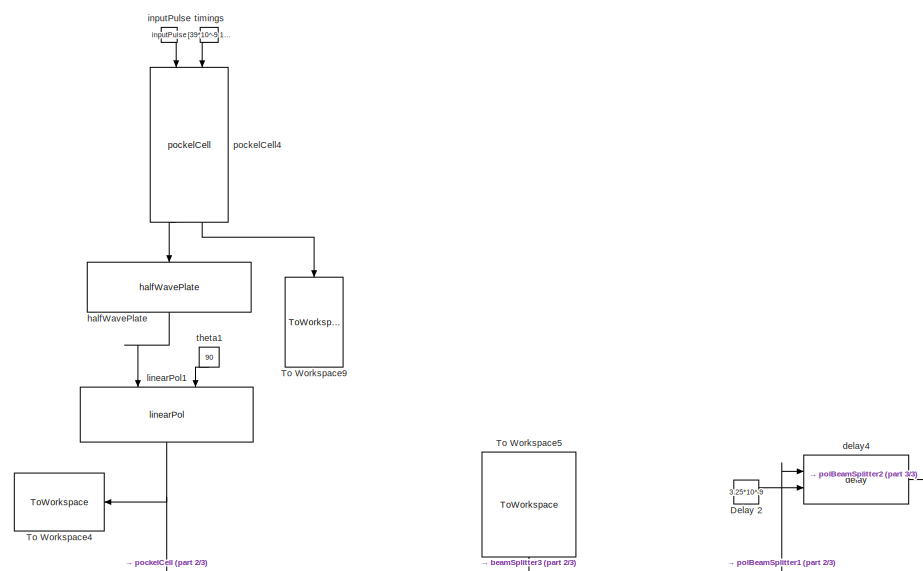
[diagram: root canvas - part 1/3, top center region]
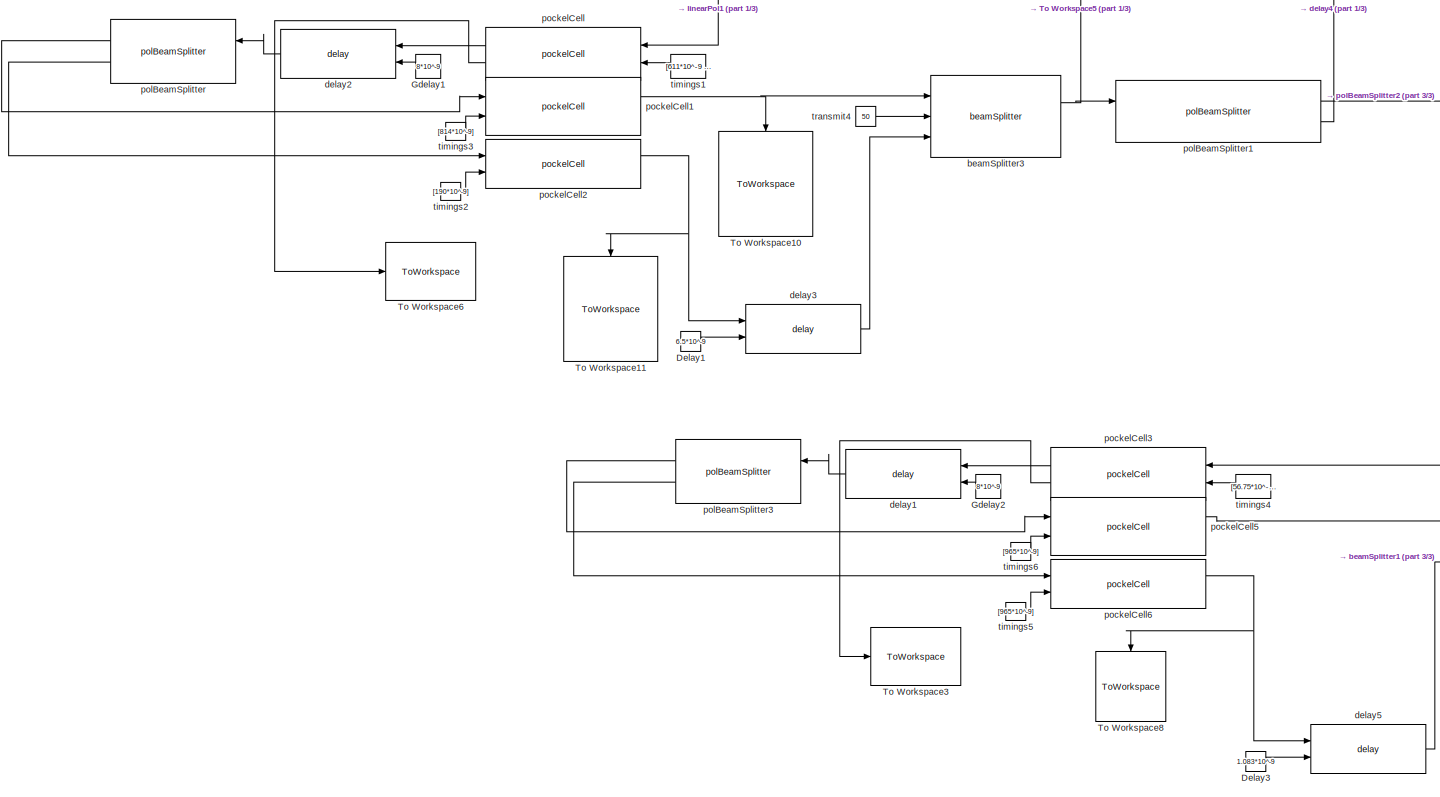
[diagram: root canvas - part 2/3, bottom left region]
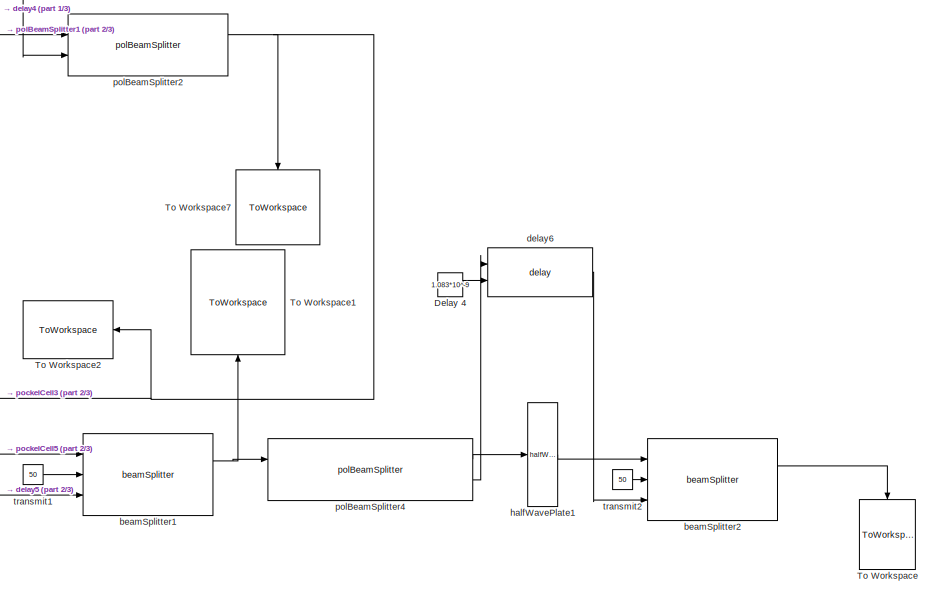
[diagram: root canvas - part 3/3, bottom right region]
MODEL slx_25d8e45b41b6
KIND model
BLOCK [Constant] Delay 2
  Value = 3.25*10^-9
BLOCK [Constant] Delay 4
  Value = 1.083*10^-9
BLOCK [Constant] Delay1
  Value = 6.5*10^-9
BLOCK [Constant] Delay3
  Value = 1.083*10^-9
BLOCK [Constant] Gdelay1
  Value = 8*10^-9
BLOCK [Constant] Gdelay2
  Value = 8*10^-9
BLOCK [ToWorkspace] To Workspace
  MaxDataPoints = inf
  Ports = [1]
  SampleTime = -1
  VariableName = outputPulse
BLOCK [ToWorkspace] To Workspace1
  MaxDataPoints = inf
  Ports = [1]
  SampleTime = -1
  VariableName = CombinedPCOut2
BLOCK [ToWorkspace] To Workspace10
  MaxDataPoints = inf
  Ports = [1]
  SampleTime = -1
  VariableName = horizPCOut
BLOCK [ToWorkspace] To Workspace11
  MaxDataPoints = inf
  Ports = [1]
  SampleTime = -1
  VariableName = vertPCOut
BLOCK [ToWorkspace] To Workspace2
  MaxDataPoints = inf
  Ports = [1]
  SampleTime = -1
  VariableName = PockelCellInput2
BLOCK [ToWorkspace] To Workspace3
  MaxDataPoints = inf
  Ports = [1]
  SampleTime = -1
  VariableName = PockelCellTimings2
BLOCK [ToWorkspace] To Workspace4
  MaxDataPoints = inf
  Ports = [1]
  SampleTime = -1
  VariableName = InitialEOMOut
BLOCK [ToWorkspace] To Workspace5
  MaxDataPoints = inf
  Ports = [1]
  SampleTime = -1
  VariableName = CombinedPCOut
BLOCK [ToWorkspace] To Workspace6
  MaxDataPoints = inf
  Ports = [1]
  SampleTime = -1
  VariableName = PockelCellTimings
BLOCK [ToWorkspace] To Workspace7
  MaxDataPoints = inf
  Ports = [1]
  SampleTime = -1
  VariableName = PBSDelayOut
BLOCK [ToWorkspace] To Workspace8
  MaxDataPoints = inf
  Ports = [1]
  SampleTime = -1
  VariableName = vertPCOut2
BLOCK [ToWorkspace] To Workspace9
  MaxDataPoints = inf
  Ports = [1]
  SampleTime = -1
  VariableName = EOMTimings
BLOCK [Reference] beamSplitter1  REF=opticalComponentLibrary/beamSplitter
  Ports = [3, 2]
  SourceBlock = opticalComponentLibrary/beamSplitter
  SourceType = SubSystem
BLOCK [Reference] beamSplitter2  REF=opticalComponentLibrary/beamSplitter
  Ports = [3, 2]
  SourceBlock = opticalComponentLibrary/beamSplitter
  SourceType = SubSystem
BLOCK [Reference] beamSplitter3  REF=opticalComponentLibrary/beamSplitter
  Ports = [3, 2]
  SourceBlock = opticalComponentLibrary/beamSplitter
  SourceType = SubSystem
BLOCK [Reference] delay1  REF=opticalComponentLibrary/delay
  Ports = [2, 1]
  SourceBlock = opticalComponentLibrary/delay
  SourceType = SubSystem
BLOCK [Reference] delay2  REF=opticalComponentLibrary/delay
  Ports = [2, 1]
  SourceBlock = opticalComponentLibrary/delay
  SourceType = SubSystem
BLOCK [Reference] delay3  REF=opticalComponentLibrary/delay
  Ports = [2, 1]
  SourceBlock = opticalComponentLibrary/delay
  SourceType = SubSystem
BLOCK [Reference] delay4  REF=opticalComponentLibrary/delay
  Ports = [2, 1]
  SourceBlock = opticalComponentLibrary/delay
  SourceType = SubSystem
BLOCK [Reference] delay5  REF=opticalComponentLibrary/delay
  Ports = [2, 1]
  SourceBlock = opticalComponentLibrary/delay
  SourceType = SubSystem
BLOCK [Reference] delay6  REF=opticalComponentLibrary/delay
  Ports = [2, 1]
  SourceBlock = opticalComponentLibrary/delay
  SourceType = SubSystem
BLOCK [Reference] halfWavePlate  REF=opticalComponentLibrary/halfWavePlate
  Ports = [1, 1]
  SourceBlock = opticalComponentLibrary/halfWavePlate
  SourceType = SubSystem
BLOCK [Reference] halfWavePlate1  REF=opticalComponentLibrary/halfWavePlate
  Ports = [1, 1]
  SourceBlock = opticalComponentLibrary/halfWavePlate
  SourceType = SubSystem
BLOCK [Constant] inputPulse
  Value = inputPulse
BLOCK [Reference] linearPol1  REF=opticalComponentLibrary/linearPol
  Ports = [2, 1]
  SourceBlock = opticalComponentLibrary/linearPol
  SourceType = SubSystem
BLOCK [Reference] pockelCell  REF=opticalComponentLibrary/pockelCell
  Ports = [2, 2]
  SourceBlock = opticalComponentLibrary/pockelCell
  SourceType = SubSystem
BLOCK [Reference] pockelCell1  REF=opticalComponentLibrary/pockelCell
  Ports = [2, 2]
  SourceBlock = opticalComponentLibrary/pockelCell
  SourceType = SubSystem
BLOCK [Reference] pockelCell2  REF=opticalComponentLibrary/pockelCell
  Ports = [2, 2]
  SourceBlock = opticalComponentLibrary/pockelCell
  SourceType = SubSystem
BLOCK [Reference] pockelCell3  REF=opticalComponentLibrary/pockelCell
  Ports = [2, 2]
  SourceBlock = opticalComponentLibrary/pockelCell
  SourceType = SubSystem
BLOCK [Reference] pockelCell4  REF=opticalComponentLibrary/pockelCell
  Ports = [2, 2]
  SourceBlock = opticalComponentLibrary/pockelCell
  SourceType = SubSystem
BLOCK [Reference] pockelCell5  REF=opticalComponentLibrary/pockelCell
  Ports = [2, 2]
  SourceBlock = opticalComponentLibrary/pockelCell
  SourceType = SubSystem
BLOCK [Reference] pockelCell6  REF=opticalComponentLibrary/pockelCell
  Ports = [2, 2]
  SourceBlock = opticalComponentLibrary/pockelCell
  SourceType = SubSystem
BLOCK [Reference] polBeamSplitter  REF=opticalComponentLibrary/polBeamSplitter
  Ports = [2, 2]
  SourceBlock = opticalComponentLibrary/polBeamSplitter
  SourceType = SubSystem
BLOCK [Reference] polBeamSplitter1  REF=opticalComponentLibrary/polBeamSplitter
  Ports = [2, 2]
  SourceBlock = opticalComponentLibrary/polBeamSplitter
  SourceType = SubSystem
BLOCK [Reference] polBeamSplitter2  REF=opticalComponentLibrary/polBeamSplitter
  Ports = [2, 2]
  SourceBlock = opticalComponentLibrary/polBeamSplitter
  SourceType = SubSystem
BLOCK [Reference] polBeamSplitter3  REF=opticalComponentLibrary/polBeamSplitter
  Ports = [2, 2]
  SourceBlock = opticalComponentLibrary/polBeamSplitter
  SourceType = SubSystem
BLOCK [Reference] polBeamSplitter4  REF=opticalComponentLibrary/polBeamSplitter
  Ports = [2, 2]
  SourceBlock = opticalComponentLibrary/polBeamSplitter
  SourceType = SubSystem
BLOCK [Constant] theta1
  Value = 90
BLOCK [Constant] timings
  SampleTime = inf
  Value = [39*10^-9 182*10^-9 377*10^-9  611*10^-9 806*10^-9 949*10^-9]
BLOCK [Constant] timings1
  Value = [611*10^-9 806*10^-9 949*10^-9]
BLOCK [Constant] timings2
  Value = [190*10^-9]
BLOCK [Constant] timings3
  Value = [814*10^-9]
BLOCK [Constant] timings4
  Value = [56.75*10^-9]
BLOCK [Constant] timings5
  Value = [965*10^-9]
BLOCK [Constant] timings6
  Value = [965*10^-9]
BLOCK [Constant] transmit1
  Value = 50
BLOCK [Constant] transmit2
  Value = 50
BLOCK [Constant] transmit4
  Value = 50
LINE Delay 2:1 -> delay4:2
LINE Delay 4:1 -> delay6:2
LINE Delay1:1 -> delay3:2
LINE Delay3:1 -> delay5:2
LINE Gdelay1:1 -> delay2:2
LINE Gdelay2:1 -> delay1:2
NET beamSplitter1:1 -> To Workspace1:1, polBeamSplitter4:1
LINE beamSplitter2:1 -> To Workspace:1
NET beamSplitter3:1 -> To Workspace5:1, polBeamSplitter1:1
LINE delay1:1 -> polBeamSplitter3:1
LINE delay2:1 -> polBeamSplitter:1
LINE delay3:1 -> beamSplitter3:3
LINE delay4:1 -> polBeamSplitter2:2
LINE delay5:1 -> beamSplitter1:3
LINE delay6:1 -> beamSplitter2:3
LINE halfWavePlate1:1 -> beamSplitter2:1
LINE halfWavePlate:1 -> linearPol1:1
LINE inputPulse:1 -> pockelCell4:1
NET linearPol1:1 -> To Workspace4:1, pockelCell:1
NET pockelCell1:1 -> To Workspace10:1, beamSplitter3:1
NET pockelCell2:1 -> To Workspace11:1, delay3:1
LINE pockelCell3:1 -> delay1:1
LINE pockelCell3:2 -> To Workspace3:1
LINE pockelCell4:1 -> halfWavePlate:1
LINE pockelCell4:2 -> To Workspace9:1
LINE pockelCell5:1 -> beamSplitter1:1
NET pockelCell6:1 -> To Workspace8:1, delay5:1
LINE pockelCell:1 -> delay2:1
LINE pockelCell:2 -> To Workspace6:1
LINE polBeamSplitter1:1 -> polBeamSplitter2:1
LINE polBeamSplitter1:2 -> delay4:1
NET polBeamSplitter2:1 -> To Workspace2:1, To Workspace7:1, pockelCell3:1
LINE polBeamSplitter3:1 -> pockelCell5:1
LINE polBeamSplitter3:2 -> pockelCell6:1
LINE polBeamSplitter4:1 -> halfWavePlate1:1
LINE polBeamSplitter4:2 -> delay6:1
LINE polBeamSplitter:1 -> pockelCell1:1
LINE polBeamSplitter:2 -> pockelCell2:1
LINE theta1:1 -> linearPol1:2
LINE timings1:1 -> pockelCell:2
LINE timings2:1 -> pockelCell2:2
LINE timings3:1 -> pockelCell1:2
LINE timings4:1 -> pockelCell3:2
LINE timings5:1 -> pockelCell6:2
LINE timings6:1 -> pockelCell5:2
LINE timings:1 -> pockelCell4:2
LINE transmit1:1 -> beamSplitter1:2
LINE transmit2:1 -> beamSplitter2:2
LINE transmit4:1 -> beamSplitter3:2
note: NET lines group one-source signal fan-out (src -> all destinations, sorted); 1:1 wires keep LINE
